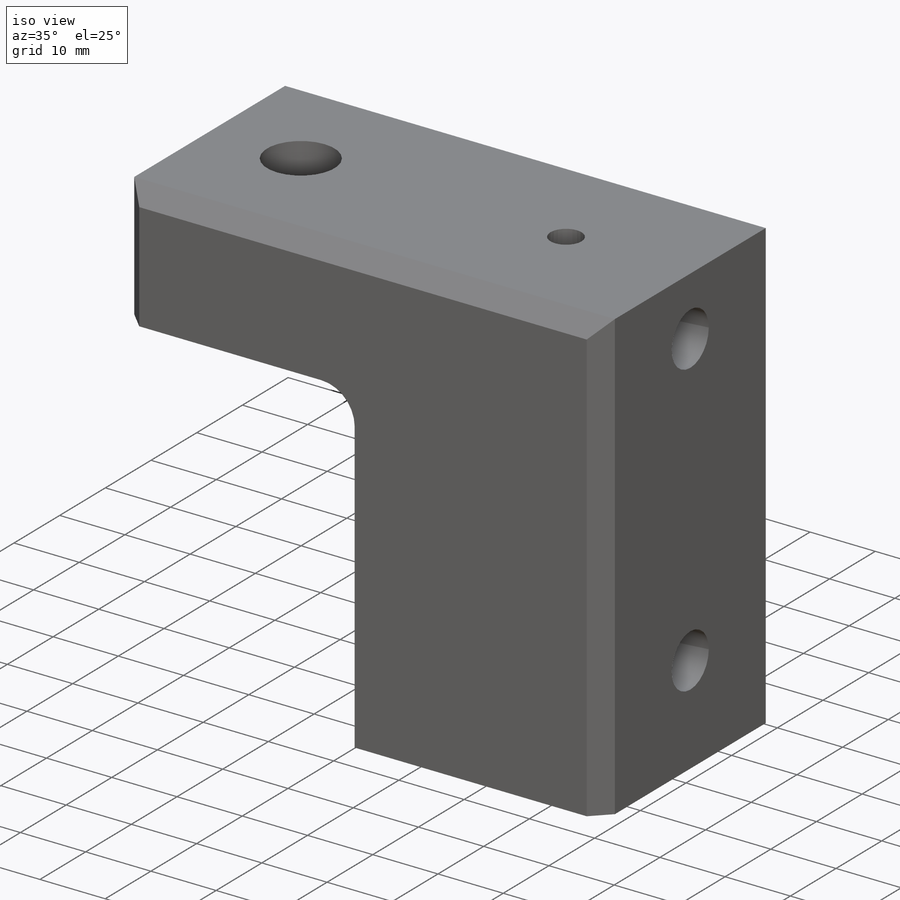
[diagram: iso view]
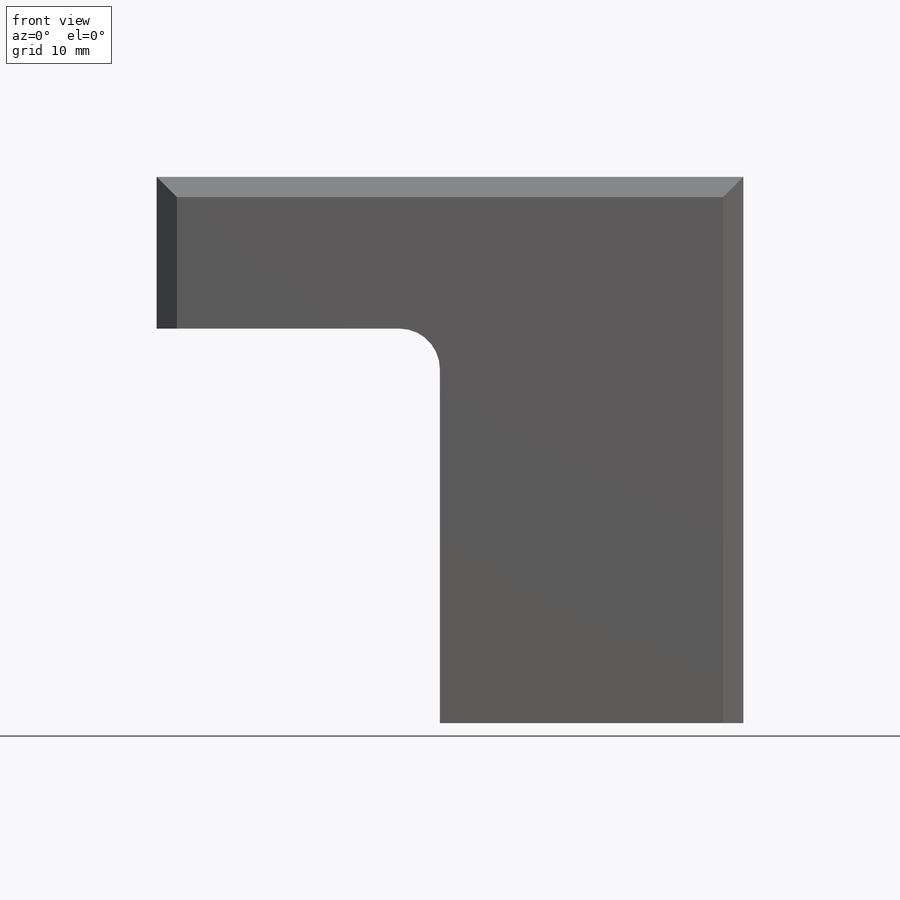
[diagram: front view]
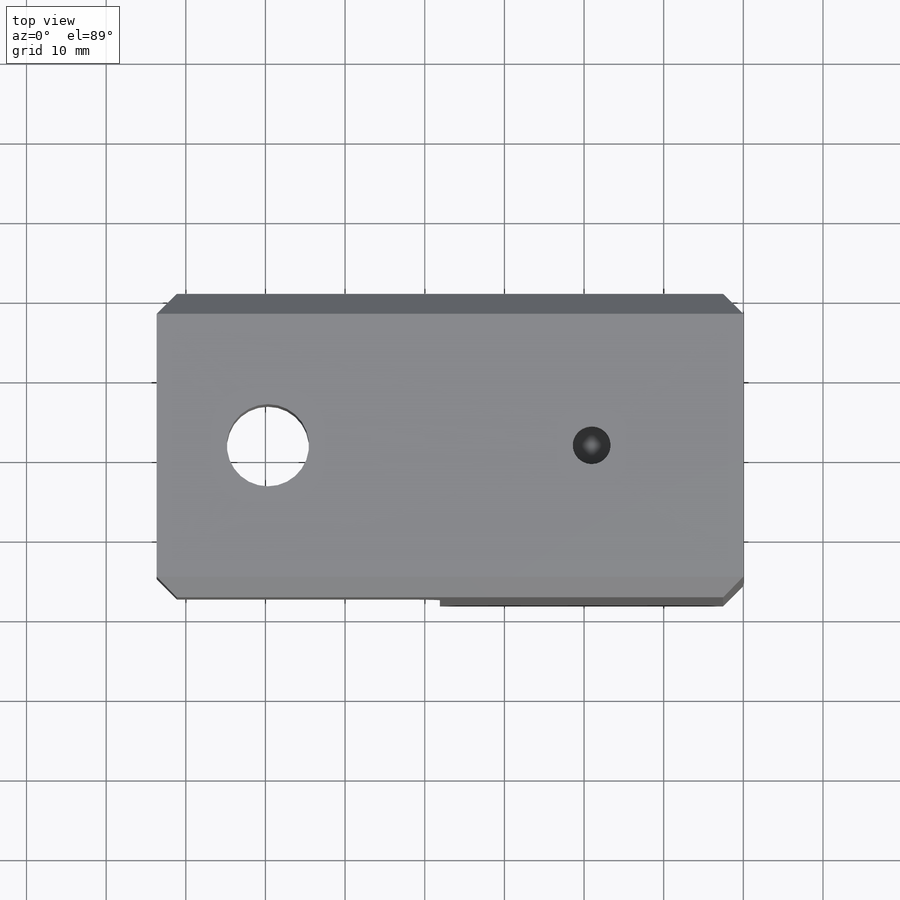
[diagram: top view]
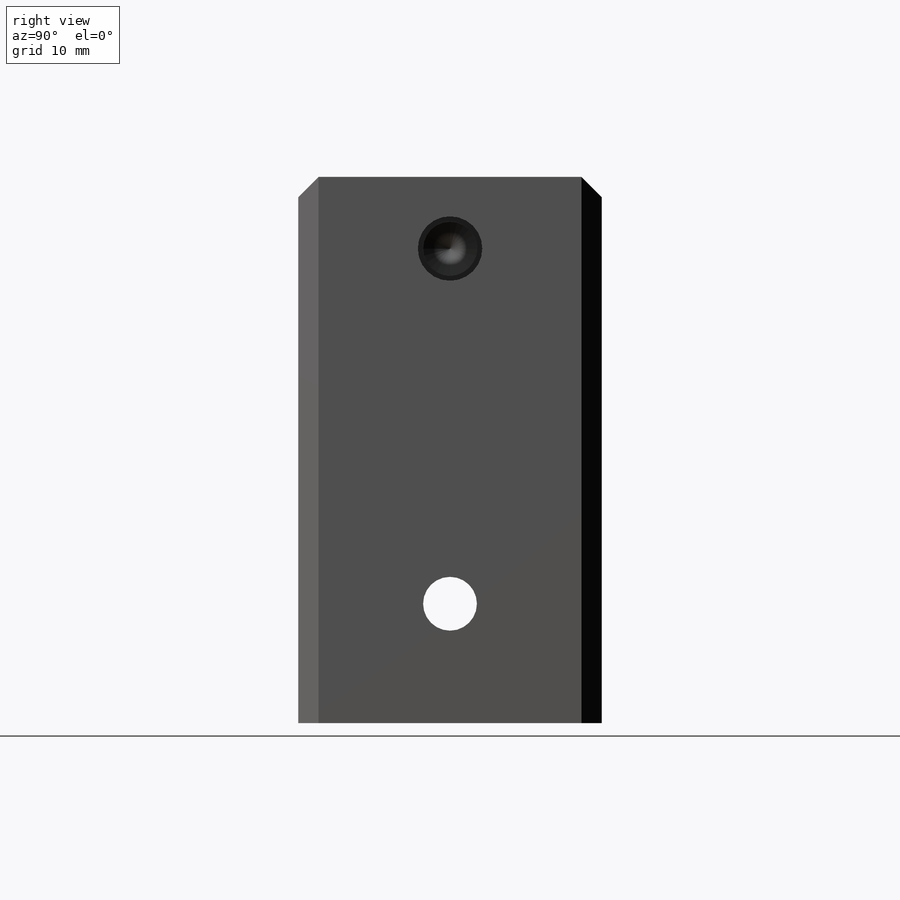
[diagram: right view]
SOLIDWORKS PART (.sldprt)
format: sldprt  version: not decoded by parser v0  size: 338,944 bytes
history: native  units: mm
features: sketch x9, hole x4, material x1, extrude x1, fillet x1, chamfer x1 (+14 scaffold rows collapsed)
feature tree (31):
  scaffold x14  (default folders/planes/origin — collapsed)
  material  "6061-T6 Al"
  sketch  "Sketch1"  dims[D1=19.05mm D2=38.1mm D3=73.66mm D4=68.58mm]
  extrude  "Extrude1"  Depth=38.1mm
  hole  "3/8 Clearance Hole1"  Diameter=10.31748mm Depth=68.58mm
  sketch  "3DSketch1"  dims[D1=13.97mm]
  sketch  "Sketch2"  dims[hole-wizard template sketch: 59 standard entries collapsed; hole parameters kept: c18.Thru Hole Dia.=~10.31748mm c18.Thru Hole Depth=68.58mm]
  hole  "Tapped Hole for 1/4-20 Helicoil3"  Diameter=6.7564mm Depth=22.86mm
  sketch  "3DSketch2"  dims[c1.D1=~30.215713mm c1.D2=44.45mm c2.D2=12.7mm c2.D3=12.7mm c2.D1=10.033mm c3.D2=49.403mm c3.D3=44.45mm c4.D2=5.207mm c4.D3=5.207mm]
  sketch  "Sketch3"  dims[hole-wizard template sketch: 28 standard entries collapsed; hole parameters kept: c8.Tap Drill Dia.=6.7564mm c8.Tap Drill Depth=22.86mm c8.Thread Major Dia.=~8.09498mm c8.Thread Depth=15.748mm c8.D5=~14.816244mm c8.Drill Angle=118.0deg]
  hole  "Tapped Hole for 1/4-20 Helicoil1"  Diameter=6.7564mm Depth=73.66mm
  sketch  "3DSketch4"  dims[c1.D1=~44.634803mm c1.D2=49.784mm c2.D1=44.577mm c2.D2=44.577mm c3.D2=44.577mm c3.D3=44.577mm c3.D1=44.577mm]
  sketch  "Sketch5"  dims[hole-wizard template sketch: 42 standard entries collapsed; hole parameters kept: c12.Thru Tap Drill Depth=73.66mm c12.Thread Major Dia.=~8.09498mm c12.Thread Depth=15.748mm]
  fillet  "Fillet1"  Radius=5.08mm
  hole  "3/16 (0.1875) Diameter Hole1"  Diameter=4.7625mm Depth=5.6388mm
  sketch  "3DSketch3"  dims[D1=19.05mm]
  sketch  "Sketch4"  dims[hole-wizard template sketch: 60 standard entries collapsed; hole parameters kept: c18.Thru Hole Depth=5.6388mm]
  chamfer  "Chamfer1"  Distance=2.54mm Angle=45deg
decode coverage: 16 of 16 modeling features carry decoded parameters
note: ~ marks probable driven/reference dimensions
summary: Diameter pulled from absorbed wizard sketch
note: suppression state not decoded; provenance and decode notes live in map.json
